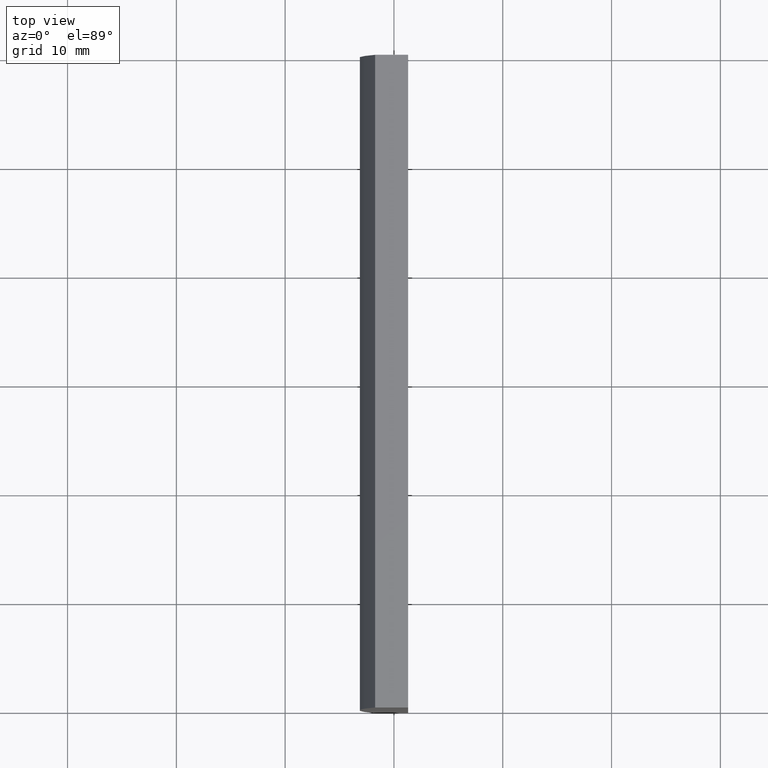
[diagram: clean part render]
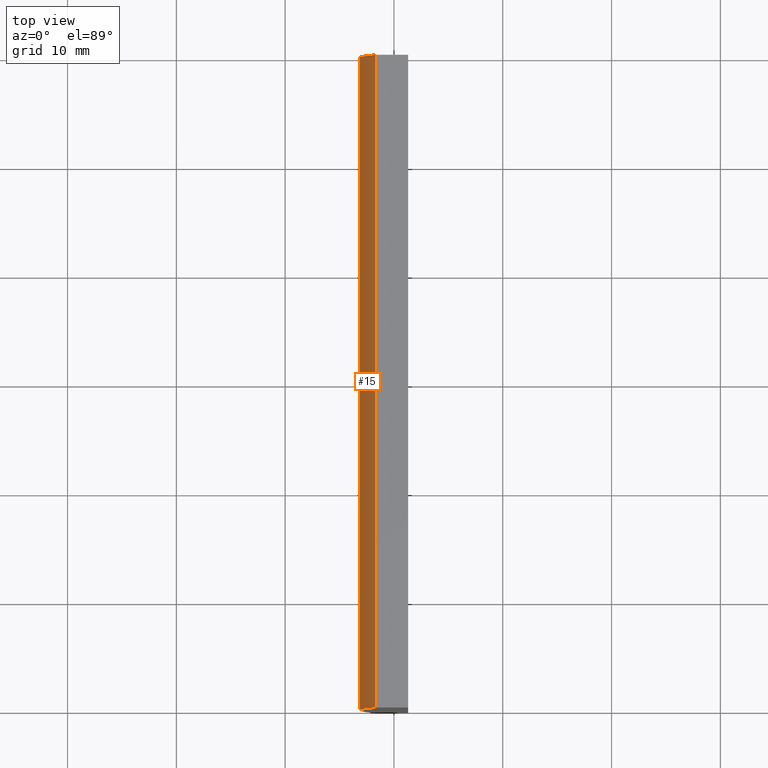
[diagram: same view with one face highlighted and labeled with its STEP entity id]
A machine part, top view. The second image highlights one B-rep face of the part: STEP entity #15.
In plain terms, the highlighted cylindrical surface (partial cylindrical patch) has radius 77.55 mm, axis along (-0, -1, -0).
Its self-contained STEP definition (entity closure, byte-faithful):
#1 = LINE ( 'NONE', #128, #106 ) ;
#4 = DIRECTION ( 'NONE',  ( 0.0000000000000000000, 0.0000000000000000000, 1.000000000000000000 ) ) ;
#15 = ADVANCED_FACE ( 'NONE', ( #62 ), #173, .T. ) ;
#16 = EDGE_LOOP ( 'NONE', ( #193, #182, #161, #195 ) ) ;
#20 = VERTEX_POINT ( 'NONE', #64 ) ;
#37 = DIRECTION ( 'NONE',  ( 0.0000000000000000000, 1.000000000000000000, 0.0000000000000000000 ) ) ;
#41 = CARTESIAN_POINT ( 'NONE',  ( 4.355204334851265500, 60.00000000000000000, 4.286263797015675000E-017 ) ) ;
#44 = CARTESIAN_POINT ( 'NONE',  ( -71.73029034054660300, 60.00000000000000000, 15.00000000000000000 ) ) ;
#50 = VERTEX_POINT ( 'NONE', #90 ) ;
#62 = FACE_OUTER_BOUND ( 'NONE', #16, .T. ) ;
#64 = CARTESIAN_POINT ( 'NONE',  ( -71.73029034054660300, 60.00000000000000000, -15.00000000000000000 ) ) ;
#65 = VECTOR ( 'NONE', #95, 1000.000000000000000 ) ;
#67 = EDGE_CURVE ( 'NONE', #20, #201, #104, .T. ) ;
#77 = EDGE_CURVE ( 'NONE', #132, #50, #185, .T. ) ;
#81 = CARTESIAN_POINT ( 'NONE',  ( -71.73029034054660300, 0.0000000000000000000, -15.00000000000000000 ) ) ;
#82 = CARTESIAN_POINT ( 'NONE',  ( 4.355204334851265500, 0.0000000000000000000, 4.286263797015675000E-017 ) ) ;
#86 = AXIS2_PLACEMENT_3D ( 'NONE', #192, #37, #105 ) ;
#90 = CARTESIAN_POINT ( 'NONE',  ( -71.73029034054660300, 0.0000000000000000000, 15.00000000000000000 ) ) ;
#91 = DIRECTION ( 'NONE',  ( -0.0000000000000000000, -1.000000000000000000, -0.0000000000000000000 ) ) ;
#95 = DIRECTION ( 'NONE',  ( -0.0000000000000000000, -1.000000000000000000, -0.0000000000000000000 ) ) ;
#104 = CIRCLE ( 'NONE', #86, 77.54999999999998300 ) ;
#105 = DIRECTION ( 'NONE',  ( 0.0000000000000000000, 0.0000000000000000000, 1.000000000000000000 ) ) ;
#106 = VECTOR ( 'NONE', #149, 1000.000000000000000 ) ;
#118 = AXIS2_PLACEMENT_3D ( 'NONE', #82, #176, #4 ) ;
#119 = DIRECTION ( 'NONE',  ( 0.0000000000000000000, 0.0000000000000000000, -1.000000000000000000 ) ) ;
#128 = CARTESIAN_POINT ( 'NONE',  ( -71.73029034054660300, 60.00000000000000000, 15.00000000000000000 ) ) ;
#130 = LINE ( 'NONE', #160, #65 ) ;
#132 = VERTEX_POINT ( 'NONE', #81 ) ;
#149 = DIRECTION ( 'NONE',  ( -0.0000000000000000000, -1.000000000000000000, -0.0000000000000000000 ) ) ;
#151 = EDGE_CURVE ( 'NONE', #201, #50, #1, .T. ) ;
#160 = CARTESIAN_POINT ( 'NONE',  ( -71.73029034054660300, 60.00000000000000000, -15.00000000000000000 ) ) ;
#161 = ORIENTED_EDGE ( 'NONE', *, *, #67, .F. ) ;
#163 = AXIS2_PLACEMENT_3D ( 'NONE', #41, #91, #119 ) ;
#173 = CYLINDRICAL_SURFACE ( 'NONE', #163, 77.54999999999998300 ) ;
#176 = DIRECTION ( 'NONE',  ( 0.0000000000000000000, 1.000000000000000000, 0.0000000000000000000 ) ) ;
#181 = EDGE_CURVE ( 'NONE', #20, #132, #130, .T. ) ;
#182 = ORIENTED_EDGE ( 'NONE', *, *, #151, .F. ) ;
#185 = CIRCLE ( 'NONE', #118, 77.54999999999998300 ) ;
#192 = CARTESIAN_POINT ( 'NONE',  ( 4.355204334851265500, 60.00000000000000000, 4.286263797015675000E-017 ) ) ;
#193 = ORIENTED_EDGE ( 'NONE', *, *, #77, .T. ) ;
#195 = ORIENTED_EDGE ( 'NONE', *, *, #181, .T. ) ;
#201 = VERTEX_POINT ( 'NONE', #44 ) ;